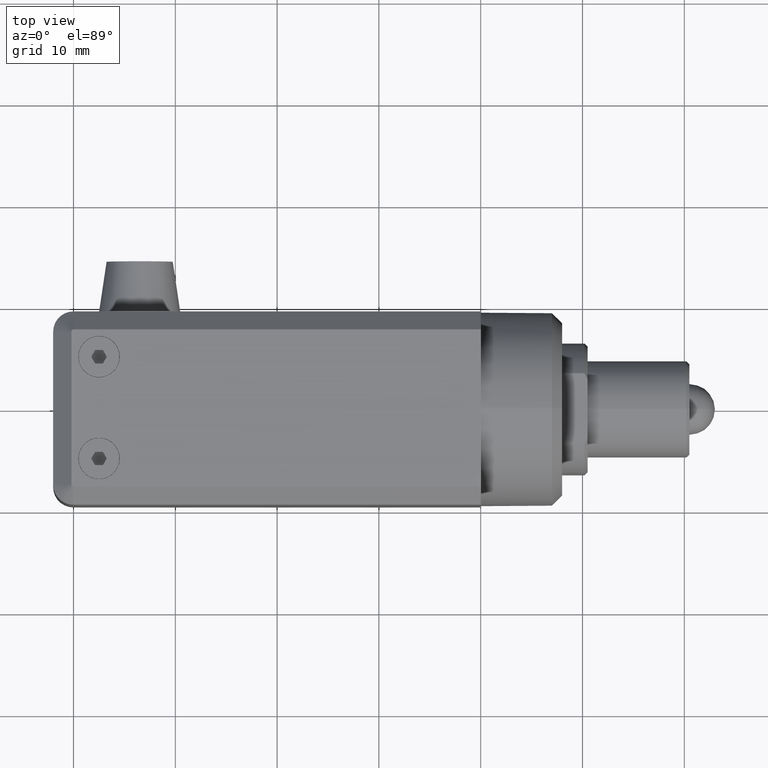
[diagram: clean part render]
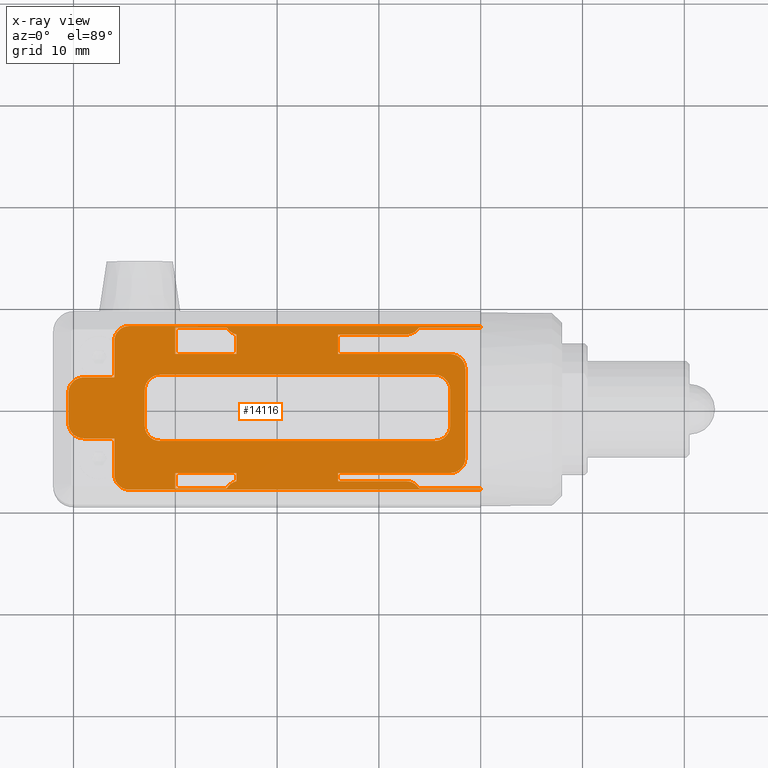
[diagram: x-ray — body ghosted, one internal face saturated and labeled with its STEP entity id]
A machine part, top view, then the same camera in x-ray: the body is ghosted and one INTERNAL B-rep face — a face not visible from any outside direction — is saturated and labeled: STEP entity #14116.
In plain terms, the highlighted planar face has unit normal (0, 0, -1).
Its self-contained STEP definition (entity closure, byte-faithful):
#101 = EDGE_CURVE ( 'NONE', #13347, #22961, #1257, .T. ) ;
#124 = VERTEX_POINT ( 'NONE', #20633 ) ;
#156 = CARTESIAN_POINT ( 'NONE',  ( 0.000000000000000000, -8.050000000000000711, 8.500000000000000000 ) ) ;
#195 = CIRCLE ( 'NONE', #12628, 1.500000000000000000 ) ;
#228 = CARTESIAN_POINT ( 'NONE',  ( -30.00012222708850729, 8.040768355497615261, 8.493811231141272344 ) ) ;
#231 = CARTESIAN_POINT ( 'NONE',  ( -34.50000000000000000, 8.050000000000000711, 8.500000000000000000 ) ) ;
#282 = EDGE_CURVE ( 'NONE', #23200, #17767, #21265, .T. ) ;
#341 = LINE ( 'NONE', #9923, #19148 ) ;
#394 = CARTESIAN_POINT ( 'NONE',  ( -34.50000000000000000, -8.050000000000000711, 8.500000000000000000 ) ) ;
#476 = EDGE_CURVE ( 'NONE', #6702, #24012, #16779, .T. ) ;
#497 = AXIS2_PLACEMENT_3D ( 'NONE', #14656, #14523, #22085 ) ;
#512 = CARTESIAN_POINT ( 'NONE',  ( -33.00000000000000000, -1.750000000000000000, 8.500000000000000000 ) ) ;
#551 = DIRECTION ( 'NONE',  ( -0.000000000000000000, -0.000000000000000000, -1.000000000000000000 ) ) ;
#562 = EDGE_CURVE ( 'NONE', #18588, #20718, #2826, .T. ) ;
#609 = CIRCLE ( 'NONE', #24774, 1.500000000000001332 ) ;
#645 = FACE_BOUND ( 'NONE', #8681, .T. ) ;
#732 = CARTESIAN_POINT ( 'NONE',  ( 0.000000000000000000, 8.049999999999892353, 8.500000000000047962 ) ) ;
#782 = LINE ( 'NONE', #6687, #2458 ) ;
#831 = VERTEX_POINT ( 'NONE', #8486 ) ;
#837 = DIRECTION ( 'NONE',  ( -0.000000000000000000, -0.000000000000000000, -1.000000000000000000 ) ) ;
#933 = ORIENTED_EDGE ( 'NONE', *, *, #2734, .T. ) ;
#1062 = CARTESIAN_POINT ( 'NONE',  ( -4.500000000000000888, 3.250000000000000888, 8.500000000000000000 ) ) ;
#1104 = AXIS2_PLACEMENT_3D ( 'NONE', #15839, #10053, #17671 ) ;
#1257 = LINE ( 'NONE', #18858, #8121 ) ;
#1269 = VERTEX_POINT ( 'NONE', #18447 ) ;
#1340 = LINE ( 'NONE', #5122, #20599 ) ;
#1386 = FACE_OUTER_BOUND ( 'NONE', #20631, .T. ) ;
#1770 = VECTOR ( 'NONE', #4489, 1000.000000000000000 ) ;
#1916 = DIRECTION ( 'NONE',  ( 1.000000000000000000, 0.000000000000000000, 0.000000000000000000 ) ) ;
#1940 = VECTOR ( 'NONE', #20773, 1000.000000000000000 ) ;
#2076 = CARTESIAN_POINT ( 'NONE',  ( -30.00000000000000000, 7.899999999999976374, 8.499999999999998224 ) ) ;
#2128 = DIRECTION ( 'NONE',  ( -0.000000000000000000, 1.000000000000000000, 0.000000000000000000 ) ) ;
#2132 = EDGE_CURVE ( 'NONE', #17406, #7412, #24295, .T. ) ;
#2138 = DIRECTION ( 'NONE',  ( -0.000000000000000000, -0.000000000000000000, -1.000000000000000000 ) ) ;
#2285 = CARTESIAN_POINT ( 'NONE',  ( -1.500000000000000000, 3.800000000000000266, 8.500000000000000000 ) ) ;
#2309 = EDGE_CURVE ( 'NONE', #23606, #12817, #14814, .T. ) ;
#2334 = LINE ( 'NONE', #19957, #18762 ) ;
#2362 = CARTESIAN_POINT ( 'NONE',  ( 0.000000000000000000, 8.050000000000000711, 8.500000000000000000 ) ) ;
#2458 = VECTOR ( 'NONE', #23979, 1000.000000000000000 ) ;
#2496 = CARTESIAN_POINT ( 'NONE',  ( 0.000000000000000000, 5.299999999999998934, 8.500000000000000000 ) ) ;
#2543 = EDGE_CURVE ( 'NONE', #23928, #21318, #24549, .T. ) ;
#2563 = CARTESIAN_POINT ( 'NONE',  ( -4.500000000000001776, -3.250000000000000444, 8.500000000000000000 ) ) ;
#2685 = VECTOR ( 'NONE', #6786, 1000.000000000000000 ) ;
#2734 = EDGE_CURVE ( 'NONE', #7808, #7127, #341, .T. ) ;
#2765 = DIRECTION ( 'NONE',  ( 1.000000000000000000, -0.000000000000000000, 0.000000000000000000 ) ) ;
#2776 = LINE ( 'NONE', #4567, #16451 ) ;
#2826 = LINE ( 'NONE', #10303, #15394 ) ;
#2927 = DIRECTION ( 'NONE',  ( -1.000000000000000000, 0.000000000000000000, 0.000000000000000000 ) ) ;
#3001 = EDGE_CURVE ( 'NONE', #22764, #3538, #23361, .T. ) ;
#3009 = FACE_BOUND ( 'NONE', #3615, .T. ) ;
#3056 = EDGE_CURVE ( 'NONE', #22961, #14047, #609, .T. ) ;
#3180 = CIRCLE ( 'NONE', #21297, 1.499999999999999556 ) ;
#3196 = CARTESIAN_POINT ( 'NONE',  ( -30.20000000000000284, 8.050000000000000711, 8.500000000000000000 ) ) ;
#3364 = CARTESIAN_POINT ( 'NONE',  ( 0.000000000000000000, 3.000000000000000000, 8.500000000000000000 ) ) ;
#3453 = LINE ( 'NONE', #20811, #16846 ) ;
#3513 = ORIENTED_EDGE ( 'NONE', *, *, #6212, .T. ) ;
#3538 = VERTEX_POINT ( 'NONE', #21848 ) ;
#3615 = EDGE_LOOP ( 'NONE', ( #18085, #3681, #20873, #6022, #21449 ) ) ;
#3674 = ORIENTED_EDGE ( 'NONE', *, *, #3001, .T. ) ;
#3681 = ORIENTED_EDGE ( 'NONE', *, *, #13555, .T. ) ;
#3835 = LINE ( 'NONE', #15303, #12444 ) ;
#3876 = VECTOR ( 'NONE', #2128, 1000.000000000000000 ) ;
#3893 = ORIENTED_EDGE ( 'NONE', *, *, #7311, .T. ) ;
#3944 = CIRCLE ( 'NONE', #7966, 1.499999999999999556 ) ;
#4117 = DIRECTION ( 'NONE',  ( 0.000000000000000000, -1.000000000000000000, -0.000000000000000000 ) ) ;
#4250 = VERTEX_POINT ( 'NONE', #20730 ) ;
#4260 = ORIENTED_EDGE ( 'NONE', *, *, #12023, .T. ) ;
#4361 = VERTEX_POINT ( 'NONE', #15716 ) ;
#4422 = CARTESIAN_POINT ( 'NONE',  ( -1.500000000000000000, 0.000000000000000000, 8.500000000000000000 ) ) ;
#4489 = DIRECTION ( 'NONE',  ( -1.000000000000000000, -0.000000000000000000, -0.000000000000000000 ) ) ;
#4567 = CARTESIAN_POINT ( 'NONE',  ( 0.000000000000000000, -3.000000000000000444, 8.500000000000000000 ) ) ;
#4756 = ORIENTED_EDGE ( 'NONE', *, *, #562, .T. ) ;
#4809 = CIRCLE ( 'NONE', #10445, 1.500000000000001332 ) ;
#4822 = DIRECTION ( 'NONE',  ( 0.000000000000000000, 0.000000000000000000, -1.000000000000000000 ) ) ;
#4907 = EDGE_CURVE ( 'NONE', #13957, #124, #195, .T. ) ;
#4908 = ORIENTED_EDGE ( 'NONE', *, *, #23133, .F. ) ;
#4910 = ORIENTED_EDGE ( 'NONE', *, *, #18249, .T. ) ;
#5013 = VERTEX_POINT ( 'NONE', #5055 ) ;
#5055 = CARTESIAN_POINT ( 'NONE',  ( -36.00000000000001421, 6.550000000000000711, 8.500000000000000000 ) ) ;
#5122 = CARTESIAN_POINT ( 'NONE',  ( 0.000000000000000000, 7.200000000000001066, 8.500000000000000000 ) ) ;
#5131 = EDGE_CURVE ( 'NONE', #20718, #15291, #8226, .T. ) ;
#5141 = VERTEX_POINT ( 'NONE', #11470 ) ;
#5146 = VECTOR ( 'NONE', #12094, 1000.000000000000000 ) ;
#5262 = DIRECTION ( 'NONE',  ( 1.000000000000000000, -0.000000000000000000, 0.000000000000000000 ) ) ;
#5294 = AXIS2_PLACEMENT_3D ( 'NONE', #14865, #18336, #16968 ) ;
#5323 = LINE ( 'NONE', #15025, #6892 ) ;
#5547 = VERTEX_POINT ( 'NONE', #14645 ) ;
#5808 = ORIENTED_EDGE ( 'NONE', *, *, #6244, .T. ) ;
#5874 = LINE ( 'NONE', #15212, #14851 ) ;
#5925 = VECTOR ( 'NONE', #14692, 1000.000000000000000 ) ;
#5944 = CARTESIAN_POINT ( 'NONE',  ( -39.00000000000000000, -1.500000000000000000, 8.500000000000000000 ) ) ;
#5972 = DIRECTION ( 'NONE',  ( 0.000000000000000000, 0.000000000000000000, -1.000000000000000000 ) ) ;
#5999 = AXIS2_PLACEMENT_3D ( 'NONE', #15563, #5972, #21211 ) ;
#6022 = ORIENTED_EDGE ( 'NONE', *, *, #24350, .T. ) ;
#6072 = CARTESIAN_POINT ( 'NONE',  ( -3.000000000000000000, 5.299999999999999822, 8.500000000000000000 ) ) ;
#6212 = EDGE_CURVE ( 'NONE', #11236, #14150, #13328, .T. ) ;
#6244 = EDGE_CURVE ( 'NONE', #5013, #8719, #10601, .T. ) ;
#6248 = CARTESIAN_POINT ( 'NONE',  ( -36.00000000000001421, -6.400000000000000355, 8.500000000000000000 ) ) ;
#6303 = EDGE_CURVE ( 'NONE', #20986, #19157, #3944, .T. ) ;
#6306 = CARTESIAN_POINT ( 'NONE',  ( -31.50000000000000000, -3.250000000000000888, 8.500000000000000000 ) ) ;
#6355 = ORIENTED_EDGE ( 'NONE', *, *, #9390, .T. ) ;
#6368 = DIRECTION ( 'NONE',  ( 0.000000000000000000, -1.000000000000000000, -0.000000000000000000 ) ) ;
#6422 = EDGE_LOOP ( 'NONE', ( #3674, #20622, #24865, #933, #21218 ) ) ;
#6490 = VERTEX_POINT ( 'NONE', #2285 ) ;
#6622 = EDGE_CURVE ( 'NONE', #19319, #6490, #24518, .T. ) ;
#6624 = CARTESIAN_POINT ( 'NONE',  ( -3.000000000000000888, 1.750000000000000222, 8.500000000000000000 ) ) ;
#6687 = CARTESIAN_POINT ( 'NONE',  ( 0.000000000000000000, -8.050000000000000711, 8.500000000000000000 ) ) ;
#6702 = VERTEX_POINT ( 'NONE', #11722 ) ;
#6737 = EDGE_CURVE ( 'NONE', #7127, #22764, #13336, .T. ) ;
#6753 = EDGE_CURVE ( 'NONE', #15291, #13010, #17201, .T. ) ;
#6767 = CARTESIAN_POINT ( 'NONE',  ( -7.326649916142607744, -7.200000000000000178, 8.500000000000000000 ) ) ;
#6786 = DIRECTION ( 'NONE',  ( -0.000000000000000000, 1.000000000000000000, 0.000000000000000000 ) ) ;
#6830 = ORIENTED_EDGE ( 'NONE', *, *, #15192, .T. ) ;
#6892 = VECTOR ( 'NONE', #9108, 1000.000000000000000 ) ;
#7004 = CARTESIAN_POINT ( 'NONE',  ( 0.000000000000000000, -8.050000000000000711, 8.500000000000000000 ) ) ;
#7040 = DIRECTION ( 'NONE',  ( 1.000000000000000000, 0.000000000000000000, -0.000000000000000000 ) ) ;
#7055 = VECTOR ( 'NONE', #19996, 1000.000000000000000 ) ;
#7077 = CARTESIAN_POINT ( 'NONE',  ( 0.000000000000000000, 3.250000000000000888, 8.500000000000000000 ) ) ;
#7118 = CARTESIAN_POINT ( 'NONE',  ( -30.00000000000000000, 5.300000000000001599, 8.500000000000000000 ) ) ;
#7127 = VERTEX_POINT ( 'NONE', #23145 ) ;
#7132 = DIRECTION ( 'NONE',  ( -1.000000000000000000, -0.000000000000000000, 0.000000000000000000 ) ) ;
#7267 = VERTEX_POINT ( 'NONE', #2563 ) ;
#7311 = EDGE_CURVE ( 'NONE', #17767, #16064, #12980, .T. ) ;
#7365 = CARTESIAN_POINT ( 'NONE',  ( -4.500000000000001776, -1.750000000000000000, 8.500000000000000000 ) ) ;
#7412 = VERTEX_POINT ( 'NONE', #394 ) ;
#7808 = VERTEX_POINT ( 'NONE', #17059 ) ;
#7809 = DIRECTION ( 'NONE',  ( -1.000000000000000000, 0.000000000000000000, 0.000000000000000000 ) ) ;
#7914 = LINE ( 'NONE', #15602, #23196 ) ;
#7928 = ORIENTED_EDGE ( 'NONE', *, *, #20173, .T. ) ;
#7966 = AXIS2_PLACEMENT_3D ( 'NONE', #8394, #17802, #21991 ) ;
#8036 = DIRECTION ( 'NONE',  ( -1.000000000000000000, 0.000000000000000000, -0.000000000000000000 ) ) ;
#8061 = CARTESIAN_POINT ( 'NONE',  ( -24.94629237273939637, 7.900000000000070521, 8.499999999999992895 ) ) ;
#8088 = CARTESIAN_POINT ( 'NONE',  ( -3.000000000000000000, -4.900000000000000355, 8.500000000000000000 ) ) ;
#8121 = VECTOR ( 'NONE', #9320, 1000.000000000000000 ) ;
#8139 = DIRECTION ( 'NONE',  ( 0.000000000000000000, 1.000000000000000000, 0.000000000000000000 ) ) ;
#8147 = EDGE_CURVE ( 'NONE', #7267, #10822, #20252, .T. ) ;
#8171 = DIRECTION ( 'NONE',  ( 1.000000000000000000, -8.673617379884035472E-16, 0.000000000000000000 ) ) ;
#8226 = CIRCLE ( 'NONE', #16261, 1.499999999999999556 ) ;
#8259 = DIRECTION ( 'NONE',  ( 0.000000000000000000, -1.000000000000000000, -0.000000000000000000 ) ) ;
#8349 = ORIENTED_EDGE ( 'NONE', *, *, #22185, .T. ) ;
#8360 = ORIENTED_EDGE ( 'NONE', *, *, #101, .T. ) ;
#8394 = CARTESIAN_POINT ( 'NONE',  ( -4.500000000000001776, 1.750000000000000000, 8.500000000000000000 ) ) ;
#8465 = CARTESIAN_POINT ( 'NONE',  ( -40.50000000000000000, 1.500000000000000000, 8.500000000000000000 ) ) ;
#8486 = CARTESIAN_POINT ( 'NONE',  ( -30.00012222708851084, -8.040768355497748487, 8.493811231141206619 ) ) ;
#8505 = DIRECTION ( 'NONE',  ( 1.000000000000000000, 2.312964634635740689E-15, 0.000000000000000000 ) ) ;
#8508 = ORIENTED_EDGE ( 'NONE', *, *, #4907, .T. ) ;
#8613 = CARTESIAN_POINT ( 'NONE',  ( -30.20000000000000284, -8.050000000000000711, 8.500000000000000000 ) ) ;
#8632 = DIRECTION ( 'NONE',  ( 1.000000000000000000, 0.000000000000000000, -0.000000000000000000 ) ) ;
#8681 = EDGE_LOOP ( 'NONE', ( #23440, #15523, #15071, #17078, #7928, #13642, #8360, #19585 ) ) ;
#8686 = EDGE_CURVE ( 'NONE', #1269, #5141, #17317, .T. ) ;
#8719 = VERTEX_POINT ( 'NONE', #231 ) ;
#8730 = EDGE_CURVE ( 'NONE', #15034, #7808, #15714, .T. ) ;
#8875 = ORIENTED_EDGE ( 'NONE', *, *, #16302, .T. ) ;
#8905 = VECTOR ( 'NONE', #17579, 1000.000000000000000 ) ;
#8975 = EDGE_CURVE ( 'NONE', #22428, #13347, #22284, .T. ) ;
#9033 = VECTOR ( 'NONE', #6368, 1000.000000000000000 ) ;
#9102 = LINE ( 'NONE', #7077, #11070 ) ;
#9108 = DIRECTION ( 'NONE',  ( -1.000000000000000000, -0.000000000000000000, 0.000000000000000000 ) ) ;
#9255 = DIRECTION ( 'NONE',  ( 0.000000000000000000, 1.000000000000000000, 0.000000000000000000 ) ) ;
#9320 = DIRECTION ( 'NONE',  ( -0.000000000000000000, -1.000000000000000000, -0.000000000000000000 ) ) ;
#9341 = ORIENTED_EDGE ( 'NONE', *, *, #24090, .T. ) ;
#9390 = EDGE_CURVE ( 'NONE', #4361, #23928, #2334, .T. ) ;
#9460 = EDGE_CURVE ( 'NONE', #11393, #9961, #14790, .T. ) ;
#9511 = DIRECTION ( 'NONE',  ( -0.000000000000000000, 1.000000000000000000, 0.000000000000000000 ) ) ;
#9596 = CARTESIAN_POINT ( 'NONE',  ( 0.000000000000000000, 8.050000000000000711, 8.500000000000000000 ) ) ;
#9686 = DIRECTION ( 'NONE',  ( 0.000000000000000000, 0.000000000000000000, -1.000000000000000000 ) ) ;
#9700 = DIRECTION ( 'NONE',  ( 1.000000000000000000, -0.000000000000000000, 0.000000000000000000 ) ) ;
#9721 = LINE ( 'NONE', #11609, #1940 ) ;
#9818 = DIRECTION ( 'NONE',  ( -1.000000000000000000, -0.000000000000000000, 0.000000000000000000 ) ) ;
#9923 = CARTESIAN_POINT ( 'NONE',  ( -30.00000000000000000, -9.500000000000000000, 8.500000000000000000 ) ) ;
#9953 = DIRECTION ( 'NONE',  ( -1.000000000000000000, 0.000000000000000000, 0.000000000000000000 ) ) ;
#9961 = VERTEX_POINT ( 'NONE', #8061 ) ;
#9966 = LINE ( 'NONE', #12196, #7055 ) ;
#9973 = ORIENTED_EDGE ( 'NONE', *, *, #282, .T. ) ;
#10053 = DIRECTION ( 'NONE',  ( 3.074186182118999926E-14, -0.000000000000000000, -1.000000000000000000 ) ) ;
#10080 = ORIENTED_EDGE ( 'NONE', *, *, #476, .T. ) ;
#10219 = EDGE_CURVE ( 'NONE', #22142, #10391, #5874, .T. ) ;
#10224 = CARTESIAN_POINT ( 'NONE',  ( -36.00000000000001421, -3.000000000000000444, 8.500000000000000000 ) ) ;
#10228 = FACE_BOUND ( 'NONE', #6422, .T. ) ;
#10239 = DIRECTION ( 'NONE',  ( -1.000000000000000000, 0.000000000000000000, 0.000000000000000000 ) ) ;
#10245 = VERTEX_POINT ( 'NONE', #19089 ) ;
#10254 = DIRECTION ( 'NONE',  ( -1.000000000000000000, 0.000000000000000000, -0.000000000000000000 ) ) ;
#10271 = CARTESIAN_POINT ( 'NONE',  ( -14.00000000000000000, -6.400000000000000355, 8.500000000000000000 ) ) ;
#10303 = CARTESIAN_POINT ( 'NONE',  ( 0.000000000000000000, -7.200000000000001954, 8.500000000000000000 ) ) ;
#10391 = VERTEX_POINT ( 'NONE', #7118 ) ;
#10445 = AXIS2_PLACEMENT_3D ( 'NONE', #16143, #4822, #12246 ) ;
#10457 = LINE ( 'NONE', #16228, #2685 ) ;
#10601 = CIRCLE ( 'NONE', #17799, 1.500000000000001332 ) ;
#10764 = CARTESIAN_POINT ( 'NONE',  ( -3.000000000000000000, 5.299999999999999822, 8.500000000000000000 ) ) ;
#10769 = CARTESIAN_POINT ( 'NONE',  ( -31.50000000000000000, 1.750000000000000000, 8.500000000000000000 ) ) ;
#10822 = VERTEX_POINT ( 'NONE', #17003 ) ;
#10900 = CARTESIAN_POINT ( 'NONE',  ( 0.000000000000000000, -7.900000000000000355, 8.500000000000000000 ) ) ;
#11070 = VECTOR ( 'NONE', #16612, 1000.000000000000000 ) ;
#11112 = DIRECTION ( 'NONE',  ( 1.000000000000000000, -0.000000000000000000, 0.000000000000000000 ) ) ;
#11152 = DIRECTION ( 'NONE',  ( -1.000000000000000000, 0.000000000000000000, 0.000000000000000000 ) ) ;
#11200 = CARTESIAN_POINT ( 'NONE',  ( -24.00000000000000355, -6.400000000000000355, 8.500000000000000000 ) ) ;
#11236 = VERTEX_POINT ( 'NONE', #18417 ) ;
#11275 = DIRECTION ( 'NONE',  ( -0.000000000000000000, -0.000000000000000000, 1.000000000000000000 ) ) ;
#11333 = CARTESIAN_POINT ( 'NONE',  ( 0.000000000000000000, -7.900000000000000355, 8.500000000000000000 ) ) ;
#11359 = CIRCLE ( 'NONE', #497, 1.500000000000001332 ) ;
#11393 = VERTEX_POINT ( 'NONE', #13296 ) ;
#11398 = VERTEX_POINT ( 'NONE', #15440 ) ;
#11442 = AXIS2_PLACEMENT_3D ( 'NONE', #10769, #11275, #11152 ) ;
#11449 = CARTESIAN_POINT ( 'NONE',  ( 0.000000000000000000, -7.900000000000000355, 8.500000000000000000 ) ) ;
#11470 = CARTESIAN_POINT ( 'NONE',  ( -13.99999999999999822, 5.299999999999999822, 8.500000000000000000 ) ) ;
#11609 = CARTESIAN_POINT ( 'NONE',  ( -24.00000000000000355, 0.000000000000000000, 8.500000000000000000 ) ) ;
#11706 = CARTESIAN_POINT ( 'NONE',  ( -31.50000000000000000, 3.250000000000001332, 8.500000000000000000 ) ) ;
#11711 = DIRECTION ( 'NONE',  ( 1.000000000000000000, 0.000000000000000000, 0.000000000000000000 ) ) ;
#11722 = CARTESIAN_POINT ( 'NONE',  ( -36.00000000000000711, -6.550000000000000711, 8.500000000000000000 ) ) ;
#11938 = CARTESIAN_POINT ( 'NONE',  ( 0.000000000000000000, 7.899999999999999467, 8.500000000000000000 ) ) ;
#12023 = EDGE_CURVE ( 'NONE', #23537, #1269, #1340, .T. ) ;
#12034 = ORIENTED_EDGE ( 'NONE', *, *, #24574, .T. ) ;
#12094 = DIRECTION ( 'NONE',  ( 0.000000000000000000, -1.000000000000000000, -0.000000000000000000 ) ) ;
#12196 = CARTESIAN_POINT ( 'NONE',  ( -36.00000000000001421, 0.000000000000000000, 8.500000000000000000 ) ) ;
#12246 = DIRECTION ( 'NONE',  ( -1.000000000000000000, 0.000000000000000000, 0.000000000000000000 ) ) ;
#12365 = CARTESIAN_POINT ( 'NONE',  ( -7.326649916142000230, 8.699999999999999289, 8.500000000000000000 ) ) ;
#12444 = VECTOR ( 'NONE', #9511, 1000.000000000000000 ) ;
#12606 = EDGE_CURVE ( 'NONE', #24125, #11393, #9721, .T. ) ;
#12628 = AXIS2_PLACEMENT_3D ( 'NONE', #8088, #13511, #1916 ) ;
#12809 = DIRECTION ( 'NONE',  ( 1.000000000000000000, -0.000000000000000000, 0.000000000000000000 ) ) ;
#12817 = VERTEX_POINT ( 'NONE', #228 ) ;
#12980 = LINE ( 'NONE', #9596, #19707 ) ;
#12999 = EDGE_CURVE ( 'NONE', #10822, #20986, #3453, .T. ) ;
#13010 = VERTEX_POINT ( 'NONE', #10900 ) ;
#13064 = EDGE_CURVE ( 'NONE', #11398, #16064, #3835, .T. ) ;
#13165 = EDGE_CURVE ( 'NONE', #24012, #22885, #2776, .T. ) ;
#13184 = EDGE_CURVE ( 'NONE', #4250, #23537, #3180, .T. ) ;
#13200 = EDGE_CURVE ( 'NONE', #7412, #6702, #4809, .T. ) ;
#13296 = CARTESIAN_POINT ( 'NONE',  ( -24.00000000000031974, 7.199999999999776357, 8.500000000000001776 ) ) ;
#13328 = LINE ( 'NONE', #21001, #16214 ) ;
#13336 = LINE ( 'NONE', #11449, #16805 ) ;
#13347 = VERTEX_POINT ( 'NONE', #15390 ) ;
#13505 = ORIENTED_EDGE ( 'NONE', *, *, #17683, .T. ) ;
#13511 = DIRECTION ( 'NONE',  ( -0.000000000000000000, -0.000000000000000000, -1.000000000000000000 ) ) ;
#13555 = EDGE_CURVE ( 'NONE', #9961, #22142, #17823, .T. ) ;
#13588 = LINE ( 'NONE', #11938, #13608 ) ;
#13590 = CARTESIAN_POINT ( 'NONE',  ( 0.000000000000000000, -9.500000000000000000, 8.500000000000000000 ) ) ;
#13608 = VECTOR ( 'NONE', #9818, 1000.000000000000000 ) ;
#13613 = EDGE_CURVE ( 'NONE', #21318, #10245, #18187, .T. ) ;
#13619 = AXIS2_PLACEMENT_3D ( 'NONE', #22093, #14532, #2927 ) ;
#13642 = ORIENTED_EDGE ( 'NONE', *, *, #8975, .T. ) ;
#13851 = CARTESIAN_POINT ( 'NONE',  ( -3.000000000000000000, 3.799999999999999822, 8.500000000000000000 ) ) ;
#13857 = DIRECTION ( 'NONE',  ( 1.000000000000000000, 2.312964634635743450E-15, -2.891205793294679332E-14 ) ) ;
#13902 = EDGE_CURVE ( 'NONE', #124, #17272, #5323, .T. ) ;
#13957 = VERTEX_POINT ( 'NONE', #21422 ) ;
#14047 = VERTEX_POINT ( 'NONE', #6306 ) ;
#14066 = CARTESIAN_POINT ( 'NONE',  ( -14.00000000000000000, 0.000000000000000000, 8.500000000000000000 ) ) ;
#14116 = ADVANCED_FACE ( 'NONE', ( #10228, #645, #1386, #3009 ), #22541, .T. ) ;
#14131 = LINE ( 'NONE', #21813, #14205 ) ;
#14145 = DIRECTION ( 'NONE',  ( 1.000000000000000000, 0.000000000000000000, 0.000000000000000000 ) ) ;
#14150 = VERTEX_POINT ( 'NONE', #15361 ) ;
#14200 = EDGE_CURVE ( 'NONE', #5141, #19319, #24063, .T. ) ;
#14205 = VECTOR ( 'NONE', #2765, 1000.000000000000000 ) ;
#14215 = ORIENTED_EDGE ( 'NONE', *, *, #2132, .T. ) ;
#14411 = ORIENTED_EDGE ( 'NONE', *, *, #6753, .T. ) ;
#14523 = DIRECTION ( 'NONE',  ( 0.000000000000000000, 0.000000000000000000, -1.000000000000000000 ) ) ;
#14532 = DIRECTION ( 'NONE',  ( 0.000000000000000000, 0.000000000000000000, -1.000000000000000000 ) ) ;
#14645 = CARTESIAN_POINT ( 'NONE',  ( -22.79999999993596305, -8.050000000000000711, 8.500000000000000000 ) ) ;
#14656 = CARTESIAN_POINT ( 'NONE',  ( -30.20000000000000284, -6.550000000000000711, 8.500000000000000000 ) ) ;
#14692 = DIRECTION ( 'NONE',  ( -1.000000000000000000, 0.000000000000000000, -0.000000000000000000 ) ) ;
#14790 = CIRCLE ( 'NONE', #1104, 1.500000000000001332 ) ;
#14814 = CIRCLE ( 'NONE', #13619, 1.500000000000001332 ) ;
#14844 = ORIENTED_EDGE ( 'NONE', *, *, #6622, .T. ) ;
#14849 = DIRECTION ( 'NONE',  ( 1.000000000000000000, 0.000000000000000000, -0.000000000000000000 ) ) ;
#14851 = VECTOR ( 'NONE', #21371, 1000.000000000000000 ) ;
#14865 = CARTESIAN_POINT ( 'NONE',  ( 0.000000000000000000, 0.000000000000000000, 8.500000000000000000 ) ) ;
#15008 = EDGE_CURVE ( 'NONE', #3538, #15034, #10457, .T. ) ;
#15025 = CARTESIAN_POINT ( 'NONE',  ( 0.000000000000000000, -6.400000000000000355, 8.500000000000000000 ) ) ;
#15034 = VERTEX_POINT ( 'NONE', #11200 ) ;
#15048 = DIRECTION ( 'NONE',  ( -0.000000000000000000, -0.000000000000000000, 1.000000000000000000 ) ) ;
#15071 = ORIENTED_EDGE ( 'NONE', *, *, #12999, .T. ) ;
#15192 = EDGE_CURVE ( 'NONE', #11398, #4250, #13588, .T. ) ;
#15212 = CARTESIAN_POINT ( 'NONE',  ( -30.00000000000000000, -9.500000000000000000, 8.500000000000000000 ) ) ;
#15291 = VERTEX_POINT ( 'NONE', #18299 ) ;
#15303 = CARTESIAN_POINT ( 'NONE',  ( 0.000000000000000000, -9.500000000000000000, 8.500000000000000000 ) ) ;
#15361 = CARTESIAN_POINT ( 'NONE',  ( -6.200000000000001954, -8.050000000000000711, 8.500000000000000000 ) ) ;
#15390 = CARTESIAN_POINT ( 'NONE',  ( -33.00000000000000000, 1.750000000000000000, 8.500000000000000000 ) ) ;
#15394 = VECTOR ( 'NONE', #24168, 1000.000000000000000 ) ;
#15440 = CARTESIAN_POINT ( 'NONE',  ( 0.000000000000000000, 7.899999999999894662, 8.500000000000000000 ) ) ;
#15523 = ORIENTED_EDGE ( 'NONE', *, *, #8147, .T. ) ;
#15563 = CARTESIAN_POINT ( 'NONE',  ( -39.00000000000000000, 1.500000000000000000, 8.500000000000000000 ) ) ;
#15602 = CARTESIAN_POINT ( 'NONE',  ( 0.000000000000000000, 8.049999999999650768, 8.500000000000000000 ) ) ;
#15610 = CARTESIAN_POINT ( 'NONE',  ( -31.50000000000000000, -1.750000000000000000, 8.500000000000000000 ) ) ;
#15627 = LINE ( 'NONE', #156, #15655 ) ;
#15655 = VECTOR ( 'NONE', #7809, 1000.000000000000000 ) ;
#15714 = LINE ( 'NONE', #6248, #1770 ) ;
#15716 = CARTESIAN_POINT ( 'NONE',  ( -40.50000000000000000, -1.500000000000000000, 8.500000000000000000 ) ) ;
#15839 = CARTESIAN_POINT ( 'NONE',  ( -23.65262240973126140, 8.659221987833999989, 8.500000000000014211 ) ) ;
#15905 = ORIENTED_EDGE ( 'NONE', *, *, #18631, .T. ) ;
#16000 = ORIENTED_EDGE ( 'NONE', *, *, #13613, .T. ) ;
#16063 = CARTESIAN_POINT ( 'NONE',  ( -23.65262240973000019, -8.659221987835000078, 8.500000000000000000 ) ) ;
#16064 = VERTEX_POINT ( 'NONE', #732 ) ;
#16143 = CARTESIAN_POINT ( 'NONE',  ( -34.50000000000000000, -6.550000000000000711, 8.500000000000000000 ) ) ;
#16214 = VECTOR ( 'NONE', #8036, 1000.000000000000000 ) ;
#16228 = CARTESIAN_POINT ( 'NONE',  ( -24.00000000000000000, 0.000000000000000000, 8.500000000000000000 ) ) ;
#16252 = CARTESIAN_POINT ( 'NONE',  ( -14.00000000000000000, -7.200000000000001954, 8.500000000000000000 ) ) ;
#16261 = AXIS2_PLACEMENT_3D ( 'NONE', #23062, #23311, #13857 ) ;
#16302 = EDGE_CURVE ( 'NONE', #17272, #18588, #22758, .T. ) ;
#16416 = VECTOR ( 'NONE', #14849, 1000.000000000000000 ) ;
#16451 = VECTOR ( 'NONE', #10254, 1000.000000000000000 ) ;
#16612 = DIRECTION ( 'NONE',  ( -1.000000000000000000, 0.000000000000000000, -0.000000000000000000 ) ) ;
#16625 = AXIS2_PLACEMENT_3D ( 'NONE', #7365, #15048, #18660 ) ;
#16646 = ORIENTED_EDGE ( 'NONE', *, *, #13064, .F. ) ;
#16750 = ORIENTED_EDGE ( 'NONE', *, *, #5131, .T. ) ;
#16779 = LINE ( 'NONE', #17288, #23442 ) ;
#16805 = VECTOR ( 'NONE', #7040, 1000.000000000000000 ) ;
#16846 = VECTOR ( 'NONE', #9255, 1000.000000000000000 ) ;
#16968 = DIRECTION ( 'NONE',  ( -1.000000000000000000, 0.000000000000000000, -0.000000000000000000 ) ) ;
#17003 = CARTESIAN_POINT ( 'NONE',  ( -3.000000000000000888, -1.749999999999999778, 8.500000000000000000 ) ) ;
#17059 = CARTESIAN_POINT ( 'NONE',  ( -30.00000000000000000, -6.400000000000000355, 8.500000000000000000 ) ) ;
#17078 = ORIENTED_EDGE ( 'NONE', *, *, #6303, .T. ) ;
#17195 = DIRECTION ( 'NONE',  ( -1.000000000000000000, 0.000000000000000000, 0.000000000000000000 ) ) ;
#17196 = CARTESIAN_POINT ( 'NONE',  ( -6.200000000000001954, 8.050000000000000711, 8.500000000000301981 ) ) ;
#17201 = LINE ( 'NONE', #11333, #16416 ) ;
#17272 = VERTEX_POINT ( 'NONE', #10271 ) ;
#17288 = CARTESIAN_POINT ( 'NONE',  ( -36.00000000000001421, 0.000000000000000000, 8.500000000000000000 ) ) ;
#17317 = LINE ( 'NONE', #14066, #9033 ) ;
#17406 = VERTEX_POINT ( 'NONE', #8613 ) ;
#17579 = DIRECTION ( 'NONE',  ( -1.000000000000000000, -0.000000000000000000, 0.000000000000000000 ) ) ;
#17657 = CARTESIAN_POINT ( 'NONE',  ( -7.326649916142000230, 7.200000000000001954, 8.500000000000000000 ) ) ;
#17671 = DIRECTION ( 'NONE',  ( 1.000000000000000000, 2.312964634635740689E-15, 3.122502256758250246E-14 ) ) ;
#17683 = EDGE_CURVE ( 'NONE', #14150, #5547, #782, .T. ) ;
#17696 = VECTOR ( 'NONE', #12809, 1000.000000000000000 ) ;
#17715 = ORIENTED_EDGE ( 'NONE', *, *, #13184, .T. ) ;
#17767 = VERTEX_POINT ( 'NONE', #17196 ) ;
#17799 = AXIS2_PLACEMENT_3D ( 'NONE', #21132, #9686, #17195 ) ;
#17802 = DIRECTION ( 'NONE',  ( -0.000000000000000000, -0.000000000000000000, 1.000000000000000000 ) ) ;
#17823 = LINE ( 'NONE', #21523, #8905 ) ;
#18059 = ORIENTED_EDGE ( 'NONE', *, *, #2309, .T. ) ;
#18085 = ORIENTED_EDGE ( 'NONE', *, *, #9460, .T. ) ;
#18187 = LINE ( 'NONE', #3364, #17696 ) ;
#18249 = EDGE_CURVE ( 'NONE', #831, #17406, #11359, .T. ) ;
#18299 = CARTESIAN_POINT ( 'NONE',  ( -6.057792162097864086, -7.899999999999974598, 8.500000000000000000 ) ) ;
#18336 = DIRECTION ( 'NONE',  ( 0.000000000000000000, 0.000000000000000000, -1.000000000000000000 ) ) ;
#18374 = AXIS2_PLACEMENT_3D ( 'NONE', #13851, #2138, #8171 ) ;
#18417 = CARTESIAN_POINT ( 'NONE',  ( 0.000000000000000000, -8.050000000000000711, 8.500000000000000000 ) ) ;
#18447 = CARTESIAN_POINT ( 'NONE',  ( -14.00000000000000000, 7.200000000000001954, 8.500000000000000000 ) ) ;
#18482 = EDGE_CURVE ( 'NONE', #22885, #4361, #21426, .T. ) ;
#18588 = VERTEX_POINT ( 'NONE', #16252 ) ;
#18631 = EDGE_CURVE ( 'NONE', #8719, #23606, #14131, .T. ) ;
#18660 = DIRECTION ( 'NONE',  ( -1.000000000000000000, 0.000000000000000000, 0.000000000000000000 ) ) ;
#18762 = VECTOR ( 'NONE', #8139, 1000.000000000000000 ) ;
#18858 = CARTESIAN_POINT ( 'NONE',  ( -33.00000000000000000, 0.000000000000000000, 8.500000000000000000 ) ) ;
#18909 = CARTESIAN_POINT ( 'NONE',  ( -39.00000000000000000, -3.000000000000000000, 8.500000000000000000 ) ) ;
#19051 = DIRECTION ( 'NONE',  ( 0.000000000000000000, 1.000000000000000000, 0.000000000000000000 ) ) ;
#19085 = LINE ( 'NONE', #20989, #21492 ) ;
#19089 = CARTESIAN_POINT ( 'NONE',  ( -36.00000000000001421, 3.000000000000000444, 8.500000000000000000 ) ) ;
#19132 = ORIENTED_EDGE ( 'NONE', *, *, #13200, .T. ) ;
#19148 = VECTOR ( 'NONE', #8259, 1000.000000000000000 ) ;
#19157 = VERTEX_POINT ( 'NONE', #1062 ) ;
#19319 = VERTEX_POINT ( 'NONE', #6072 ) ;
#19330 = CARTESIAN_POINT ( 'NONE',  ( -14.00000000000000000, 0.000000000000000000, 8.500000000000000000 ) ) ;
#19355 = LINE ( 'NONE', #13590, #3876 ) ;
#19363 = VECTOR ( 'NONE', #9700, 1000.000000000000000 ) ;
#19493 = DIRECTION ( 'NONE',  ( -0.000000000000000000, -0.000000000000000000, 1.000000000000000000 ) ) ;
#19585 = ORIENTED_EDGE ( 'NONE', *, *, #3056, .T. ) ;
#19707 = VECTOR ( 'NONE', #11112, 1000.000000000000000 ) ;
#19877 = DIRECTION ( 'NONE',  ( 1.000000000000000000, 0.000000000000000000, -0.000000000000000000 ) ) ;
#19957 = CARTESIAN_POINT ( 'NONE',  ( -40.50000000000000000, 0.000000000000000000, 8.500000000000000000 ) ) ;
#19996 = DIRECTION ( 'NONE',  ( 0.000000000000000000, 1.000000000000000000, 0.000000000000000000 ) ) ;
#20173 = EDGE_CURVE ( 'NONE', #19157, #22428, #9102, .T. ) ;
#20189 = LINE ( 'NONE', #10764, #21643 ) ;
#20252 = CIRCLE ( 'NONE', #16625, 1.499999999999999556 ) ;
#20545 = ORIENTED_EDGE ( 'NONE', *, *, #18482, .T. ) ;
#20599 = VECTOR ( 'NONE', #7132, 1000.000000000000000 ) ;
#20622 = ORIENTED_EDGE ( 'NONE', *, *, #15008, .T. ) ;
#20631 = EDGE_LOOP ( 'NONE', ( #6830, #17715, #4260, #23271, #21580, #14844, #9341, #8508, #22451, #8875, #4756, #16750, #14411, #4908, #3513, #13505, #12034, #4910, #14215, #19132, #10080, #22965, #20545, #6355, #23626, #16000, #8349, #5808, #15905, #18059, #24480, #9973, #3893, #16646 ) ) ;
#20633 = CARTESIAN_POINT ( 'NONE',  ( -3.000000000000002665, -6.400000000000000355, 8.500000000000000000 ) ) ;
#20718 = VERTEX_POINT ( 'NONE', #6767 ) ;
#20730 = CARTESIAN_POINT ( 'NONE',  ( -6.057792162097094035, 7.899999999999927525, 8.500000000000000000 ) ) ;
#20773 = DIRECTION ( 'NONE',  ( -0.000000000000000000, 1.000000000000000000, 0.000000000000000000 ) ) ;
#20811 = CARTESIAN_POINT ( 'NONE',  ( -3.000000000000000000, 0.000000000000000000, 8.500000000000000000 ) ) ;
#20873 = ORIENTED_EDGE ( 'NONE', *, *, #10219, .T. ) ;
#20923 = AXIS2_PLACEMENT_3D ( 'NONE', #16063, #837, #8505 ) ;
#20986 = VERTEX_POINT ( 'NONE', #6624 ) ;
#20989 = CARTESIAN_POINT ( 'NONE',  ( 0.000000000000000000, -3.250000000000000888, 8.500000000000000000 ) ) ;
#21001 = CARTESIAN_POINT ( 'NONE',  ( 0.000000000000000000, -8.050000000000000711, 8.500000000000000000 ) ) ;
#21132 = CARTESIAN_POINT ( 'NONE',  ( -34.50000000000000000, 6.550000000000000711, 8.500000000000000000 ) ) ;
#21211 = DIRECTION ( 'NONE',  ( -1.000000000000000000, 0.000000000000000000, 0.000000000000000000 ) ) ;
#21218 = ORIENTED_EDGE ( 'NONE', *, *, #6737, .T. ) ;
#21265 = LINE ( 'NONE', #2362, #19363 ) ;
#21297 = AXIS2_PLACEMENT_3D ( 'NONE', #12365, #551, #14145 ) ;
#21317 = DIRECTION ( 'NONE',  ( 0.000000000000000000, 0.000000000000000000, -1.000000000000000000 ) ) ;
#21318 = VERTEX_POINT ( 'NONE', #22158 ) ;
#21371 = DIRECTION ( 'NONE',  ( 0.000000000000000000, -1.000000000000000000, -0.000000000000000000 ) ) ;
#21422 = CARTESIAN_POINT ( 'NONE',  ( -1.500000000000000000, -4.900000000000000355, 8.500000000000000000 ) ) ;
#21426 = CIRCLE ( 'NONE', #21833, 1.500000000000001332 ) ;
#21449 = ORIENTED_EDGE ( 'NONE', *, *, #12606, .T. ) ;
#21492 = VECTOR ( 'NONE', #5262, 1000.000000000000000 ) ;
#21523 = CARTESIAN_POINT ( 'NONE',  ( 0.000000000000000000, 7.900000000000139799, 8.500000000000000000 ) ) ;
#21580 = ORIENTED_EDGE ( 'NONE', *, *, #14200, .T. ) ;
#21643 = VECTOR ( 'NONE', #8632, 1000.000000000000000 ) ;
#21647 = EDGE_CURVE ( 'NONE', #14047, #7267, #19085, .T. ) ;
#21813 = CARTESIAN_POINT ( 'NONE',  ( 0.000000000000000000, 8.050000000000000711, 8.500000000000000000 ) ) ;
#21833 = AXIS2_PLACEMENT_3D ( 'NONE', #5944, #21317, #10239 ) ;
#21848 = CARTESIAN_POINT ( 'NONE',  ( -24.00000000000000000, -7.200000000000749800, 8.500000000000000000 ) ) ;
#21991 = DIRECTION ( 'NONE',  ( -1.000000000000000000, 8.673617379884038430E-16, 0.000000000000000000 ) ) ;
#22085 = DIRECTION ( 'NONE',  ( -1.000000000000000000, 0.000000000000000000, 0.000000000000000000 ) ) ;
#22093 = CARTESIAN_POINT ( 'NONE',  ( -30.20000000000000284, 6.550000000000000711, 8.500000000000000000 ) ) ;
#22142 = VERTEX_POINT ( 'NONE', #2076 ) ;
#22158 = CARTESIAN_POINT ( 'NONE',  ( -39.00000000000000000, 3.000000000000000888, 8.500000000000000000 ) ) ;
#22185 = EDGE_CURVE ( 'NONE', #10245, #5013, #9966, .T. ) ;
#22284 = CIRCLE ( 'NONE', #11442, 1.500000000000001332 ) ;
#22428 = VERTEX_POINT ( 'NONE', #11706 ) ;
#22451 = ORIENTED_EDGE ( 'NONE', *, *, #13902, .T. ) ;
#22541 = PLANE ( 'NONE',  #5294 ) ;
#22635 = CARTESIAN_POINT ( 'NONE',  ( -24.00000000000000000, 5.299999999999999822, 8.500000000000000000 ) ) ;
#22758 = LINE ( 'NONE', #19330, #24597 ) ;
#22764 = VERTEX_POINT ( 'NONE', #23759 ) ;
#22885 = VERTEX_POINT ( 'NONE', #18909 ) ;
#22961 = VERTEX_POINT ( 'NONE', #512 ) ;
#22965 = ORIENTED_EDGE ( 'NONE', *, *, #13165, .T. ) ;
#23062 = CARTESIAN_POINT ( 'NONE',  ( -7.326649916142799590, -8.699999999999999289, 8.500000000000000000 ) ) ;
#23077 = LINE ( 'NONE', #4422, #5146 ) ;
#23095 = EDGE_CURVE ( 'NONE', #12817, #23200, #7914, .T. ) ;
#23133 = EDGE_CURVE ( 'NONE', #11236, #13010, #19355, .T. ) ;
#23145 = CARTESIAN_POINT ( 'NONE',  ( -30.00000000000000000, -7.900000000000000355, 8.500000000000000000 ) ) ;
#23196 = VECTOR ( 'NONE', #11711, 1000.000000000000000 ) ;
#23200 = VERTEX_POINT ( 'NONE', #23930 ) ;
#23271 = ORIENTED_EDGE ( 'NONE', *, *, #8686, .T. ) ;
#23311 = DIRECTION ( 'NONE',  ( -2.929151825203000126E-14, -0.000000000000000000, -1.000000000000000000 ) ) ;
#23361 = CIRCLE ( 'NONE', #20923, 1.500000000000001332 ) ;
#23435 = VECTOR ( 'NONE', #19877, 1000.000000000000000 ) ;
#23440 = ORIENTED_EDGE ( 'NONE', *, *, #21647, .T. ) ;
#23442 = VECTOR ( 'NONE', #19051, 1000.000000000000000 ) ;
#23537 = VERTEX_POINT ( 'NONE', #17657 ) ;
#23606 = VERTEX_POINT ( 'NONE', #3196 ) ;
#23626 = ORIENTED_EDGE ( 'NONE', *, *, #2543, .T. ) ;
#23759 = CARTESIAN_POINT ( 'NONE',  ( -24.94629237273766975, -7.900000000000257927, 8.500000000000000000 ) ) ;
#23928 = VERTEX_POINT ( 'NONE', #8465 ) ;
#23930 = CARTESIAN_POINT ( 'NONE',  ( -22.80000000006077343, 8.050000000000000711, 8.500000000000303757 ) ) ;
#23979 = DIRECTION ( 'NONE',  ( -1.000000000000000000, 0.000000000000000000, -0.000000000000000000 ) ) ;
#24012 = VERTEX_POINT ( 'NONE', #10224 ) ;
#24063 = LINE ( 'NONE', #2496, #23435 ) ;
#24090 = EDGE_CURVE ( 'NONE', #6490, #13957, #23077, .T. ) ;
#24125 = VERTEX_POINT ( 'NONE', #22635 ) ;
#24168 = DIRECTION ( 'NONE',  ( 1.000000000000000000, 0.000000000000000000, -0.000000000000000000 ) ) ;
#24295 = LINE ( 'NONE', #7004, #5925 ) ;
#24350 = EDGE_CURVE ( 'NONE', #10391, #24125, #20189, .T. ) ;
#24480 = ORIENTED_EDGE ( 'NONE', *, *, #23095, .T. ) ;
#24518 = CIRCLE ( 'NONE', #18374, 1.500000000000000000 ) ;
#24549 = CIRCLE ( 'NONE', #5999, 1.500000000000001332 ) ;
#24574 = EDGE_CURVE ( 'NONE', #5547, #831, #15627, .T. ) ;
#24597 = VECTOR ( 'NONE', #4117, 1000.000000000000000 ) ;
#24774 = AXIS2_PLACEMENT_3D ( 'NONE', #15610, #19493, #9953 ) ;
#24865 = ORIENTED_EDGE ( 'NONE', *, *, #8730, .T. ) ;